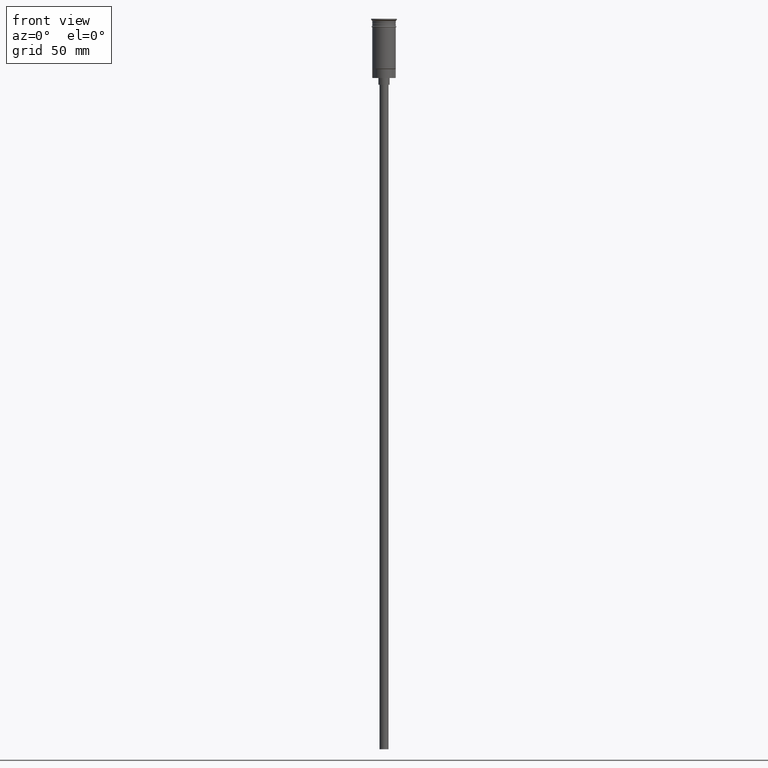
[diagram: clean part render]
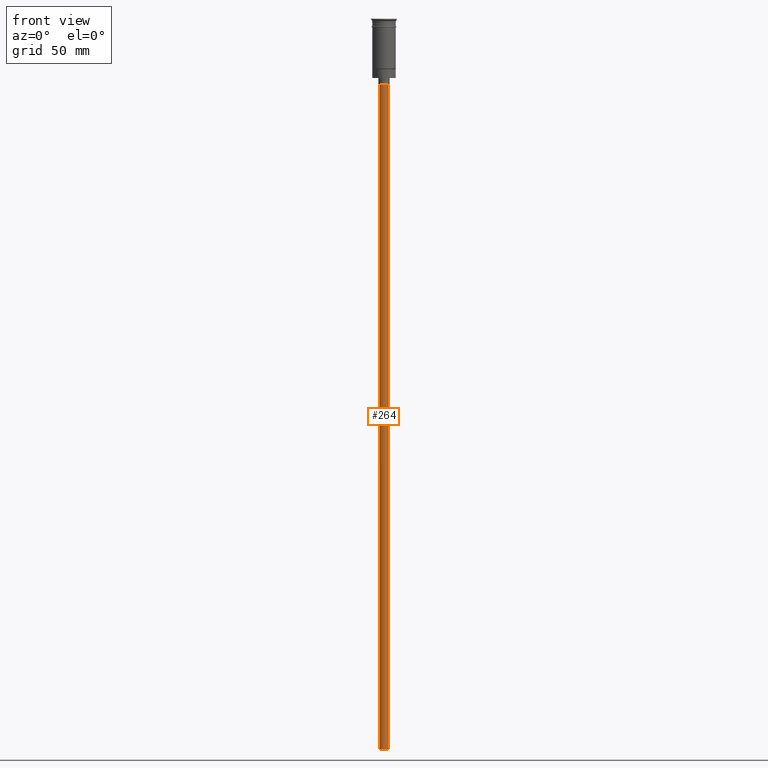
[diagram: same view with one face highlighted and labeled with its STEP entity id]
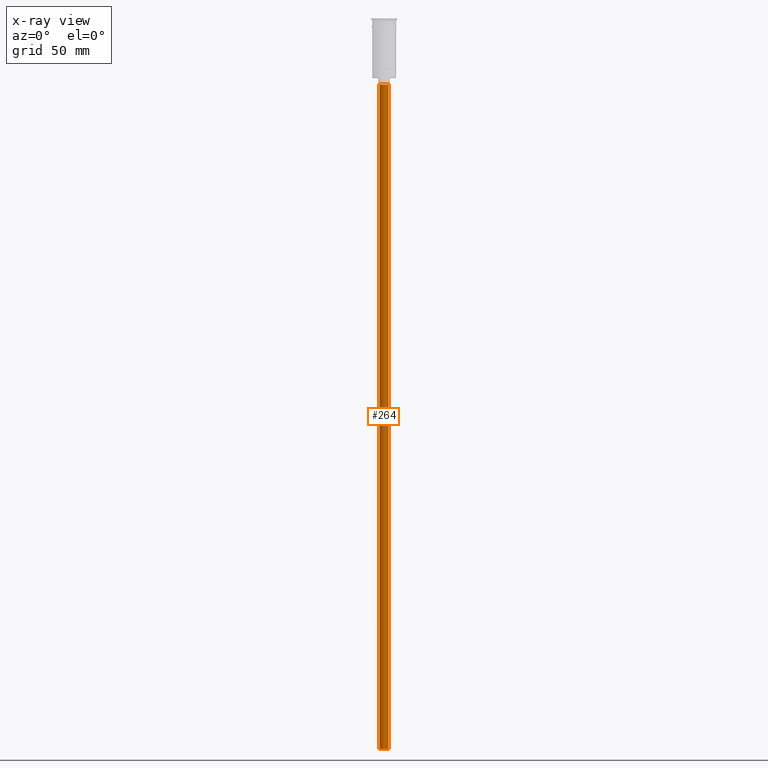
[diagram: x-ray of the same camera — body ghosted, the highlighted face saturated]
A machine part, front view. The second image highlights one B-rep face of the part: STEP entity #264.
The next image is the same camera in x-ray: the body ghosted, the highlighted face saturated — about 0% of this face is hidden behind the body in this view.
In plain terms, the highlighted cylindrical surface (edge-blend (fillet) strip) has radius 2 mm, axis along (-0, -0, 1).
Its self-contained STEP definition (entity closure, byte-faithful):
#94 = EDGE_CURVE ( 'NONE', #295, #545, #940, .T. ) ;
#98 = DIRECTION ( 'NONE',  ( 0.000000000000000000, 0.000000000000000000, -1.000000000000000000 ) ) ;
#201 = DIRECTION ( 'NONE',  ( -1.000000000000000000, 0.000000000000000000, 0.000000000000000000 ) ) ;
#221 = CARTESIAN_POINT ( 'NONE',  ( -2.000000000000000000, 2.449293598294706414E-16, -326.5000000000000000 ) ) ;
#244 = EDGE_CURVE ( 'NONE', #295, #445, #482, .T. ) ;
#264 = ADVANCED_FACE ( 'NONE', ( #324 ), #464, .T. ) ;
#292 = CARTESIAN_POINT ( 'NONE',  ( -2.000000000000000000, 2.449293598294706414E-16, -326.5000000000000000 ) ) ;
#295 = VERTEX_POINT ( 'NONE', #342 ) ;
#324 = FACE_OUTER_BOUND ( 'NONE', #1017, .T. ) ;
#342 = CARTESIAN_POINT ( 'NONE',  ( 2.000000000000000000, 0.000000000000000000, -326.5000000000000000 ) ) ;
#445 = VERTEX_POINT ( 'NONE', #292 ) ;
#455 = CARTESIAN_POINT ( 'NONE',  ( 0.000000000000000000, 0.000000000000000000, -326.5000000000000000 ) ) ;
#464 = CYLINDRICAL_SURFACE ( 'NONE', #485, 2.000000000000000000 ) ;
#481 = DIRECTION ( 'NONE',  ( -1.000000000000000000, 0.000000000000000000, 0.000000000000000000 ) ) ;
#482 = CIRCLE ( 'NONE', #1387, 2.000000000000000000 ) ;
#485 = AXIS2_PLACEMENT_3D ( 'NONE', #1217, #603, #1096 ) ;
#545 = VERTEX_POINT ( 'NONE', #920 ) ;
#577 = VERTEX_POINT ( 'NONE', #1297 ) ;
#603 = DIRECTION ( 'NONE',  ( -0.000000000000000000, -0.000000000000000000, 1.000000000000000000 ) ) ;
#650 = EDGE_CURVE ( 'NONE', #445, #577, #869, .T. ) ;
#691 = CARTESIAN_POINT ( 'NONE',  ( 0.000000000000000000, 0.000000000000000000, -29.50000000000000000 ) ) ;
#695 = CARTESIAN_POINT ( 'NONE',  ( 2.000000000000000000, 0.000000000000000000, -326.5000000000000000 ) ) ;
#717 = VECTOR ( 'NONE', #721, 1000.000000000000000 ) ;
#721 = DIRECTION ( 'NONE',  ( -0.000000000000000000, -0.000000000000000000, 1.000000000000000000 ) ) ;
#726 = DIRECTION ( 'NONE',  ( 0.000000000000000000, 0.000000000000000000, -1.000000000000000000 ) ) ;
#750 = ORIENTED_EDGE ( 'NONE', *, *, #244, .F. ) ;
#827 = DIRECTION ( 'NONE',  ( -0.000000000000000000, -0.000000000000000000, 1.000000000000000000 ) ) ;
#869 = LINE ( 'NONE', #221, #717 ) ;
#915 = ORIENTED_EDGE ( 'NONE', *, *, #94, .T. ) ;
#920 = CARTESIAN_POINT ( 'NONE',  ( 2.000000000000000000, 0.000000000000000000, -29.50000000000000000 ) ) ;
#940 = LINE ( 'NONE', #695, #1104 ) ;
#1017 = EDGE_LOOP ( 'NONE', ( #1277, #750, #915, #1153 ) ) ;
#1028 = AXIS2_PLACEMENT_3D ( 'NONE', #691, #98, #201 ) ;
#1096 = DIRECTION ( 'NONE',  ( 1.000000000000000000, 0.000000000000000000, 0.000000000000000000 ) ) ;
#1104 = VECTOR ( 'NONE', #827, 1000.000000000000000 ) ;
#1153 = ORIENTED_EDGE ( 'NONE', *, *, #1536, .T. ) ;
#1217 = CARTESIAN_POINT ( 'NONE',  ( 0.000000000000000000, 0.000000000000000000, -326.5000000000000000 ) ) ;
#1277 = ORIENTED_EDGE ( 'NONE', *, *, #650, .F. ) ;
#1297 = CARTESIAN_POINT ( 'NONE',  ( -2.000000000000000000, 2.449293598294706414E-16, -29.50000000000000000 ) ) ;
#1387 = AXIS2_PLACEMENT_3D ( 'NONE', #455, #726, #481 ) ;
#1428 = CIRCLE ( 'NONE', #1028, 2.000000000000000000 ) ;
#1536 = EDGE_CURVE ( 'NONE', #545, #577, #1428, .T. ) ;